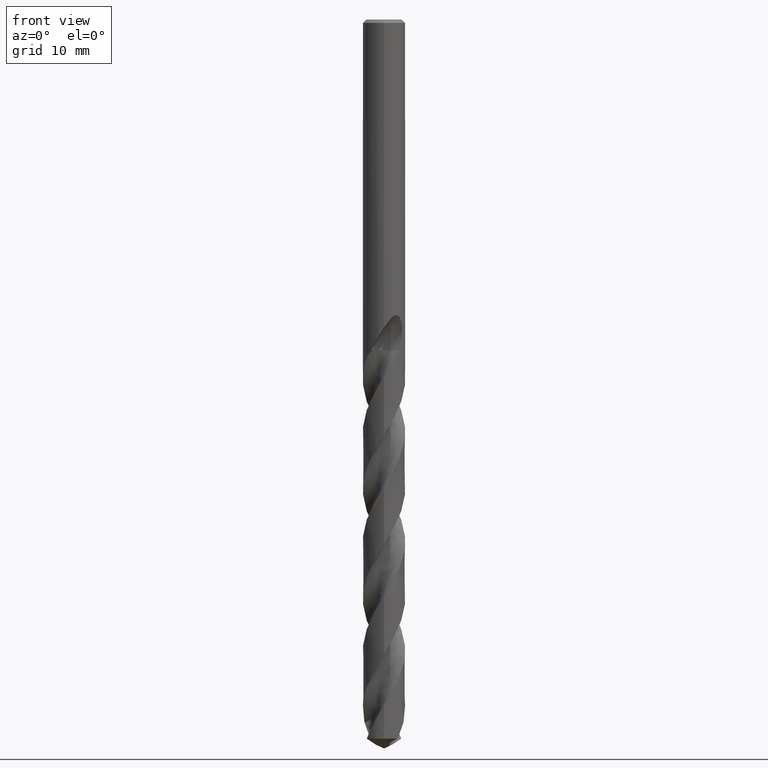
[diagram: clean part render]
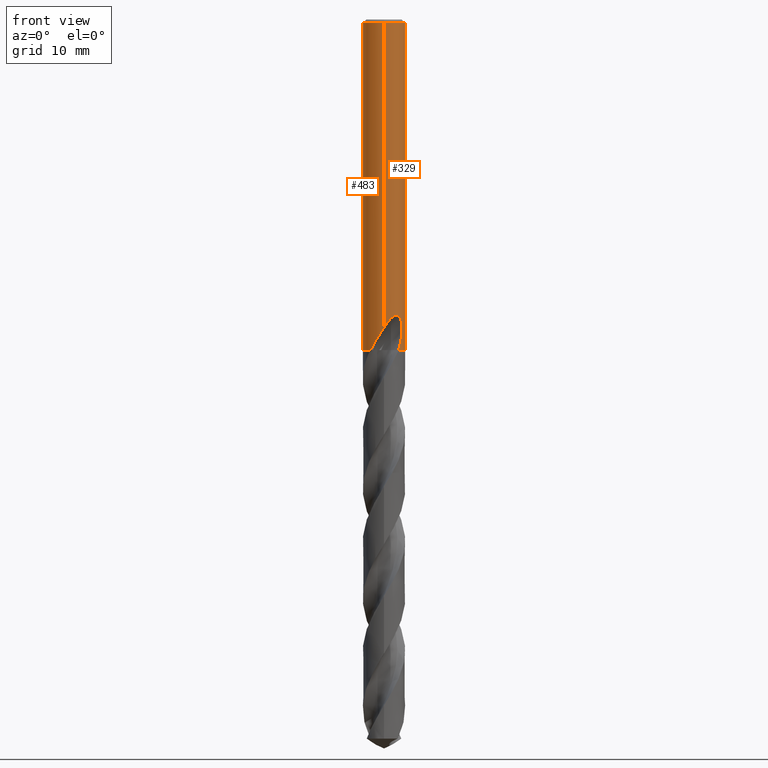
[diagram: same view with one multi-face feature highlighted, each face labeled with its STEP entity id]
A machine part, front view. The highlighted faces form ONE feature: a constant-radius fillet chain: 2 tangent blend faces with common blend radius 2.5 mm. The faces share edges in the B-rep.
Their STEP definitions:
[1] entity #483 (Cylinder):
#297=VERTEX_POINT('',#796);
#345=EDGE_CURVE('',#459,#461,#848,.T.);
#361=EDGE_CURVE('',#689,#657,#865,.T.);
#367=VERTEX_POINT('',#871);
#371=EDGE_CURVE('',#697,#445,#875,.T.);
#403=EDGE_CURVE('',#693,#697,#911,.T.);
#411=VERTEX_POINT('',#921);
#413=EDGE_CURVE('',#601,#739,#923,.T.);
#445=VERTEX_POINT('',#960);
#459=VERTEX_POINT('',#976);
#461=VERTEX_POINT('',#978);
#463=EDGE_CURVE('',#667,#459,#980,.T.);
#475=EDGE_CURVE('',#445,#297,#994,.T.);
#483=ADVANCED_FACE('',(#1003),#1004,.T.);
#509=EDGE_CURVE('',#297,#601,#1031,.T.);
#511=EDGE_CURVE('',#711,#411,#1033,.T.);
#523=EDGE_CURVE('',#367,#711,#1045,.T.);
#567=EDGE_CURVE('',#411,#667,#1091,.T.);
#601=VERTEX_POINT('',#1132);
#647=EDGE_CURVE('',#739,#749,#1181,.T.);
#657=VERTEX_POINT('',#1191);
#667=VERTEX_POINT('',#1202);
#681=EDGE_CURVE('',#461,#693,#1217,.T.);
#683=EDGE_CURVE('',#689,#367,#1219,.T.);
#689=VERTEX_POINT('',#1225);
#693=VERTEX_POINT('',#1229);
#697=VERTEX_POINT('',#1233);
#711=VERTEX_POINT('',#1249);
#717=EDGE_CURVE('',#749,#657,#1255,.T.);
#739=VERTEX_POINT('',#1279);
#749=VERTEX_POINT('',#1292);
#796=CARTESIAN_POINT('',(-1.337052752443,2.11241329696265,-26.3720803908795));
#848=B_SPLINE_CURVE_WITH_KNOTS('',3,(#2874,#2875,#2876,#2877,#2878,#2879,#2880,#2881,#2882,#2883,#2884,#2885,#2886,#2887,#2888,#2889,#2890,#2891,#2892,#2893,#2894,#2895,#2896,#2897,#2898,#2899,#2900),.UNSPECIFIED.,.F.,.F.,(4,2,3,2,2,2,2,2,2,2,2,2,4),(-0.545536025367692,-0.272768012683846,0.0,0.272768012683848,0.545536025367696,0.820534288590035,1.09553255181237,1.36658811994437,1.63764368807636,1.90985781574818,2.18207194342,2.45428607109182,2.72650019876364),.UNSPECIFIED.);
#865=CIRCLE('',#4023,2.5);
#871=CARTESIAN_POINT('',(8.04065567925304E-013,-2.5,-36.3475508021617));
#875=LINE('',#4057,#4058);
#911=B_SPLINE_CURVE_WITH_KNOTS('',3,(#4124,#4125,#4126,#4127,#4128,#4129,#4130,#4131,#4132,#4133,#4134,#4135,#4136,#4137,#4138,#4139,#4140,#4141),.UNSPECIFIED.,.F.,.F.,(4,2,2,2,2,2,2,2,4),(3.40747025134213,3.63399679422936,3.86052333711658,4.08704988000381,4.54010296577826,4.98894677805631,5.21336868419534,5.43779059033436,5.89737811399236),.UNSPECIFIED.);
#921=CARTESIAN_POINT('',(0.0,2.5,-0.399999999999999));
#923=LINE('',#4154,#4155);
#960=CARTESIAN_POINT('',(-4.84778234642394E-016,2.5,-25.7128911336578));
#976=CARTESIAN_POINT('',(-0.486378944383046,2.45223072374131,-24.6432837483006));
#978=CARTESIAN_POINT('',(-0.562333990228013,2.43593523793927,-24.3171221986971));
#980=B_SPLINE_CURVE_WITH_KNOTS('',3,(#4717,#4718,#4719,#4720,#4721,#4722,#4723,#4724,#4725,#4726,#4727,#4728,#4729,#4730,#4731,#4732,#4733,#4734,#4735,#4736,#4737,#4738,#4739,#4740,#4741,#4742,#4743),.UNSPECIFIED.,.F.,.F.,(4,2,3,2,2,2,2,2,2,2,2,2,4),(-0.545536025367692,-0.272768012683846,0.0,0.272768012683848,0.545536025367696,0.820534288590035,1.09553255181237,1.36658811994437,1.63764368807636,1.90985781574818,2.18207194342,2.45428607109182,2.72650019876364),.UNSPECIFIED.);
#994=ELLIPSE('',#5168,2.78732108010715,2.5);
#1003=FACE_OUTER_BOUND('',#5579,.T.);
#1004=CYLINDRICAL_SURFACE('',#5580,2.5);
#1031=B_SPLINE_CURVE_WITH_KNOTS('',3,(#5829,#5830,#5831,#5832,#5833,#5834,#5835,#5836,#5837,#5838,#5839,#5840,#5841,#5842),.UNSPECIFIED.,.F.,.F.,(4,2,2,2,2,2,4),(5.74184131033546,6.38338630713353,6.70167125762085,7.01995620810817,7.33824115859549,7.65652610908281,7.97267049279763),.UNSPECIFIED.);
#1033=CIRCLE('',#5845,2.5);
#1045=LINE('',#5862,#5863);
#1091=LINE('',#6033,#6034);
#1132=CARTESIAN_POINT('',(-4.05848327793801E-016,2.5,-27.0310253601033));
#1181=B_SPLINE_CURVE_WITH_KNOTS('',3,(#6390,#6391,#6392,#6393,#6394,#6395,#6396,#6397,#6398,#6399,#6400,#6401,#6402,#6403,#6404,#6405,#6406,#6407,#6408,#6409,#6410,#6411,#6412,#6413,#6414,#6415,#6416,#6417),.UNSPECIFIED.,.F.,.F.,(4,2,2,2,2,2,2,2,2,2,2,2,2,4),(0.0,1.22122386173699,1.88969268965014,2.49570206115854,3.20005920250859,4.04588076504936,4.77671705363808,5.1087496307142,5.3514701623625,5.58118445651955,5.87263528591434,6.29907753808364,6.90528861786853,7.59419731699709),.UNSPECIFIED.);
#1191=CARTESIAN_POINT('',(-1.73901278444137,1.79606083848779,-39.0));
#1202=CARTESIAN_POINT('',(1.28723065792858E-015,2.5,-25.0232688117743));
#1217=CIRCLE('',#7735,2.5);
#1219=B_SPLINE_CURVE_WITH_KNOTS('',3,(#7738,#7739,#7740,#7741,#7742,#7743,#7744,#7745,#7746,#7747,#7748,#7749,#7750,#7751,#7752,#7753,#7754,#7755,#7756,#7757,#7758,#7759,#7760,#7761,#7762,#7763,#7764,#7765),.UNSPECIFIED.,.F.,.F.,(4,2,2,2,2,2,2,2,2,2,2,2,2,4),(0.0,1.22122386173695,1.88969268965015,2.49570206115883,3.2000592025093,4.04588076505078,4.77671705364005,5.10874963071638,5.35147016236483,5.58118445652202,5.87263528591698,6.29907753808691,6.90528861787344,7.59419731700397),.UNSPECIFIED.);
#1225=CARTESIAN_POINT('',(-1.59066632366362,-1.92867328668244,-39.0));
#1229=CARTESIAN_POINT('',(-1.0350734039088,2.27565881636959,-24.3171221986971));
#1233=CARTESIAN_POINT('',(2.06254272401591E-016,2.5,-25.5000801551881));
#1249=CARTESIAN_POINT('',(3.06151588455594E-016,-2.5,-0.399999999999999));
#1255=B_SPLINE_CURVE_WITH_KNOTS('',3,(#8084,#8085,#8086,#8087),.UNSPECIFIED.,.F.,.F.,(4,4),(0.0,1.43153845134806),.UNSPECIFIED.);
#1279=CARTESIAN_POINT('',(-8.05508857857316E-013,2.5,-36.3475508021617));
#1292=CARTESIAN_POINT('',(-2.03410540828571,1.45341500886114,-37.6360494335651));
#2874=CARTESIAN_POINT('',(0.665970925763578,2.40966444262217,-23.8144468406677));
#2875=CARTESIAN_POINT('',(0.728934701926765,2.39226283119475,-23.8776898552512));
#2876=CARTESIAN_POINT('',(0.783854191141695,2.3742527106411,-23.9578173401929));
#2877=CARTESIAN_POINT('',(0.85710538433736,2.3488026216247,-24.1342986039861));
#2878=CARTESIAN_POINT('',(0.875400981188567,2.34172439072878,-24.2307193416922));
#2879=CARTESIAN_POINT('',(0.875400981188567,2.34172439072878,-24.3216420125868));
#2880=CARTESIAN_POINT('',(0.875400981188567,2.34172439072878,-24.4125646834814));
#2881=CARTESIAN_POINT('',(0.857105384337359,2.3488026216247,-24.5089854211875));
#2882=CARTESIAN_POINT('',(0.783854191141694,2.3742527106411,-24.6854666849806));
#2883=CARTESIAN_POINT('',(0.728934701926765,2.39226283119475,-24.7655941699223));
#2884=CARTESIAN_POINT('',(0.602492334852459,2.42720833595748,-24.8925972969923));
#2885=CARTESIAN_POINT('',(0.522074206021918,2.44653483128876,-24.9480400654794));
#2886=CARTESIAN_POINT('',(0.344864497739391,2.47773336651695,-25.0220194084222));
#2887=CARTESIAN_POINT('',(0.248012633036036,2.4893558213916,-25.0405166027747));
#2888=CARTESIAN_POINT('',(0.0663518021847662,2.50075206612679,-25.0405166027747));
#2889=CARTESIAN_POINT('',(-0.0298893470602784,2.50138879143264,-25.022492023163));
#2890=CARTESIAN_POINT('',(-0.206770062073363,2.49300730059576,-24.9493021497283));
#2891=CARTESIAN_POINT('',(-0.287428111278846,2.4842541825409,-24.8941514092032));
#2892=CARTESIAN_POINT('',(-0.415014574728184,2.46615735069508,-24.7669203186748));
#2893=CARTESIAN_POINT('',(-0.470452609740376,2.45562407455832,-24.6861824514513));
#2894=CARTESIAN_POINT('',(-0.544127554922908,2.44035663307035,-24.5089289603225));
#2895=CARTESIAN_POINT('',(-0.562348199187247,2.43593195776706,-24.4123800551441));
#2896=CARTESIAN_POINT('',(-0.562348199187247,2.43593195776706,-24.2309039700295));
#2897=CARTESIAN_POINT('',(-0.544127554922907,2.44035663307035,-24.1343550648511));
#2898=CARTESIAN_POINT('',(-0.470452609740376,2.45562407455832,-23.9571015737223));
#2899=CARTESIAN_POINT('',(-0.415014574728185,2.46615735069508,-23.8763637064988));
#2900=CARTESIAN_POINT('',(-0.351085299602306,2.47522506297976,-23.8126124967618));
#4023=AXIS2_PLACEMENT_3D('',#8737,#8738,#8739);
#4057=CARTESIAN_POINT('',(-3.06151588455594E-016,2.5,-34.0));
#4058=VECTOR('',#8743,1.0);
#4124=CARTESIAN_POINT('',(-1.01249105024972,2.28579567616273,-24.0960724981866));
#4125=CARTESIAN_POINT('',(-1.02776520969296,2.27903000165907,-24.1730604203531));
#4126=CARTESIAN_POINT('',(-1.03510901790186,2.27564261716515,-24.2507930131037));
#4127=CARTESIAN_POINT('',(-1.03510901790186,2.27564261716515,-24.4018107083619));
#4128=CARTESIAN_POINT('',(-1.02776520969296,2.27903000165907,-24.4795433011124));
#4129=CARTESIAN_POINT('',(-0.997216890806469,2.29256135066638,-24.6335191454456));
#4130=CARTESIAN_POINT('',(-0.974023085473006,2.30268573317761,-24.709766240962));
#4131=CARTESIAN_POINT('',(-0.882620396703176,2.3399382303257,-24.9283916468438));
#4132=CARTESIAN_POINT('',(-0.791438931771837,2.37392732019541,-25.060528896947));
#4133=CARTESIAN_POINT('',(-0.582569540250674,2.43357741163698,-25.2683635025582));
#4134=CARTESIAN_POINT('',(-0.450707212977386,2.46338886979259,-25.3587659383457));
#4135=CARTESIAN_POINT('',(-0.232809556070147,2.49021186651352,-25.4491762805451));
#4136=CARTESIAN_POINT('',(-0.156868678239248,2.4962479730291,-25.4720810709889));
#4137=CARTESIAN_POINT('',(-0.00382397135294391,2.50116914708075,-25.5021808764159));
#4138=CARTESIAN_POINT('',(0.0732815758300291,2.50004518820827,-25.5093686300866));
#4139=CARTESIAN_POINT('',(0.300885062429601,2.48655125524764,-25.5093686300866));
#4140=CARTESIAN_POINT('',(0.461355574497977,2.46164847460973,-25.4780070879051));
#4141=CARTESIAN_POINT('',(0.607066912513942,2.42517417183401,-25.4166530697376));
#4154=CARTESIAN_POINT('',(-3.06151588455594E-016,2.5,-34.0));
#4155=VECTOR('',#8797,1.0);
#4717=CARTESIAN_POINT('',(0.665970925763578,2.40966444262217,-23.8144468406677));
#4718=CARTESIAN_POINT('',(0.728934701926765,2.39226283119475,-23.8776898552512));
#4719=CARTESIAN_POINT('',(0.783854191141695,2.3742527106411,-23.9578173401929));
#4720=CARTESIAN_POINT('',(0.85710538433736,2.3488026216247,-24.1342986039861));
#4721=CARTESIAN_POINT('',(0.875400981188567,2.34172439072878,-24.2307193416922));
#4722=CARTESIAN_POINT('',(0.875400981188567,2.34172439072878,-24.3216420125868));
#4723=CARTESIAN_POINT('',(0.875400981188567,2.34172439072878,-24.4125646834814));
#4724=CARTESIAN_POINT('',(0.857105384337359,2.3488026216247,-24.5089854211875));
#4725=CARTESIAN_POINT('',(0.783854191141694,2.3742527106411,-24.6854666849806));
#4726=CARTESIAN_POINT('',(0.728934701926765,2.39226283119475,-24.7655941699223));
#4727=CARTESIAN_POINT('',(0.602492334852459,2.42720833595748,-24.8925972969923));
#4728=CARTESIAN_POINT('',(0.522074206021918,2.44653483128876,-24.9480400654794));
#4729=CARTESIAN_POINT('',(0.344864497739391,2.47773336651695,-25.0220194084222));
#4730=CARTESIAN_POINT('',(0.248012633036036,2.4893558213916,-25.0405166027747));
#4731=CARTESIAN_POINT('',(0.0663518021847662,2.50075206612679,-25.0405166027747));
#4732=CARTESIAN_POINT('',(-0.0298893470602784,2.50138879143264,-25.022492023163));
#4733=CARTESIAN_POINT('',(-0.206770062073363,2.49300730059576,-24.9493021497283));
#4734=CARTESIAN_POINT('',(-0.287428111278846,2.4842541825409,-24.8941514092032));
#4735=CARTESIAN_POINT('',(-0.415014574728184,2.46615735069508,-24.7669203186748));
#4736=CARTESIAN_POINT('',(-0.470452609740376,2.45562407455832,-24.6861824514513));
#4737=CARTESIAN_POINT('',(-0.544127554922908,2.44035663307035,-24.5089289603225));
#4738=CARTESIAN_POINT('',(-0.562348199187247,2.43593195776706,-24.4123800551441));
#4739=CARTESIAN_POINT('',(-0.562348199187247,2.43593195776706,-24.2309039700295));
#4740=CARTESIAN_POINT('',(-0.544127554922907,2.44035663307035,-24.1343550648511));
#4741=CARTESIAN_POINT('',(-0.470452609740376,2.45562407455832,-23.9571015737223));
#4742=CARTESIAN_POINT('',(-0.415014574728185,2.46615735069508,-23.8763637064988));
#4743=CARTESIAN_POINT('',(-0.351085299602306,2.47522506297976,-23.8126124967618));
#5168=AXIS2_PLACEMENT_3D('',#8912,#8913,#8914);
#5579=EDGE_LOOP('',(#8929,#8930,#8931,#8932,#8933,#8934,#8935,#8936,#8937,#8938,#8939,#8940,#8941,#8942,#8943));
#5580=AXIS2_PLACEMENT_3D('',#8944,#8945,#8946);
#5829=CARTESIAN_POINT('',(-1.52922720239943,1.97774218831515,-26.0350256137533));
#5830=CARTESIAN_POINT('',(-1.44554661440645,2.04244541510641,-26.2336185092837));
#5831=CARTESIAN_POINT('',(-1.32224059386466,2.12776411068116,-26.4117773237405));
#5832=CARTESIAN_POINT('',(-1.11083923266715,2.24106269636897,-26.6235239182011));
#5833=CARTESIAN_POINT('',(-1.03137274700072,2.2792842117821,-26.6900993969564));
#5834=CARTESIAN_POINT('',(-0.85699847174598,2.35040844974621,-26.8086756195647));
#5835=CARTESIAN_POINT('',(-0.76207969937467,2.38327172699608,-26.8606838688763));
#5836=CARTESIAN_POINT('',(-0.562123380301406,2.4381892760378,-26.9451467146832));
#5837=CARTESIAN_POINT('',(-0.456876992863795,2.46026890642638,-26.9776691337745));
#5838=CARTESIAN_POINT('',(-0.243043404773846,2.49049986589281,-27.0207410230115));
#5839=CARTESIAN_POINT('',(-0.134450325090297,2.49863547873756,-27.0312723335086));
#5840=CARTESIAN_POINT('',(0.0770125100596432,2.50103465103285,-27.0312723335086));
#5841=CARTESIAN_POINT('',(0.185068225214801,2.49544746802312,-27.0208794424668));
#5842=CARTESIAN_POINT('',(0.29161272585759,2.48293415501054,-26.9995311633397));
#5845=AXIS2_PLACEMENT_3D('',#8972,#8973,#8974);
#5862=CARTESIAN_POINT('',(3.06151588455594E-016,-2.5,-34.0));
#5863=VECTOR('',#8975,1.0);
#6033=CARTESIAN_POINT('',(-3.06151588455594E-016,2.5,-34.0));
#6034=VECTOR('',#9000,1.0);
#6390=CARTESIAN_POINT('',(1.59066632366362,1.92867328668244,-39.0));
#6391=CARTESIAN_POINT('',(1.42594142425635,2.06452955221238,-38.6534187983299));
#6392=CARTESIAN_POINT('',(1.23674190160998,2.18519538232714,-38.3301111158466));
#6393=CARTESIAN_POINT('',(0.906835962169124,2.33324037322966,-37.789785502064));
#6394=CARTESIAN_POINT('',(0.787940024509335,2.3758899926876,-37.5993667946439));
#6395=CARTESIAN_POINT('',(0.557692202951656,2.43964850259996,-37.2306305138082));
#6396=CARTESIAN_POINT('',(0.447357130362196,2.46217434500238,-37.0540138983952));
#6397=CARTESIAN_POINT('',(0.208473913673857,2.49466063687215,-36.6732869532758));
#6398=CARTESIAN_POINT('',(0.0779172999257475,2.50225636404324,-36.4661784962012));
#6399=CARTESIAN_POINT('',(-0.211976083899422,2.49601617967841,-36.0232393234365));
#6400=CARTESIAN_POINT('',(-0.383880944493438,2.47706499324399,-35.7712035112239));
#6401=CARTESIAN_POINT('',(-0.714928582304699,2.40076561909535,-35.3564114709981));
#6402=CARTESIAN_POINT('',(-0.897693353063925,2.342829684032,-35.1544796989304));
#6403=CARTESIAN_POINT('',(-1.17453590045742,2.2090026317397,-34.9650842820656));
#6404=CARTESIAN_POINT('',(-1.26632834786995,2.15839541451626,-34.9182048509992));
#6405=CARTESIAN_POINT('',(-1.42717848859667,2.05419379491698,-34.8822115619022));
#6406=CARTESIAN_POINT('',(-1.49315616646306,2.00673693164053,-34.8815573377637));
#6407=CARTESIAN_POINT('',(-1.61604642135828,1.90898496294982,-34.9131321603238));
#6408=CARTESIAN_POINT('',(-1.6697938044949,1.86177144882854,-34.942722943795));
#6409=CARTESIAN_POINT('',(-1.77917434136715,1.75830270000715,-35.0352969942584));
#6410=CARTESIAN_POINT('',(-1.82977924249417,1.70468131194901,-35.1036447714215));
#6411=CARTESIAN_POINT('',(-1.93343472012183,1.58759530338203,-35.2907988400505));
#6412=CARTESIAN_POINT('',(-1.98297746496641,1.52383542864205,-35.42961315846));
#6413=CARTESIAN_POINT('',(-2.07612653691827,1.39582794841838,-35.8179782127033));
#6414=CARTESIAN_POINT('',(-2.1097923569152,1.34131856627263,-36.0945599999825));
#6415=CARTESIAN_POINT('',(-2.13125891654718,1.30698103574412,-36.755584349787));
#6416=CARTESIAN_POINT('',(-2.11597100893976,1.33884122227733,-37.170420667861));
#6417=CARTESIAN_POINT('',(-2.03410540828571,1.45341500886114,-37.6360494335651));
#7735=AXIS2_PLACEMENT_3D('',#9151,#9152,#9153);
#7738=CARTESIAN_POINT('',(-1.59066632366362,-1.92867328668244,-39.0));
#7739=CARTESIAN_POINT('',(-1.42594142425636,-2.06452955221237,-38.65341879833));
#7740=CARTESIAN_POINT('',(-1.23674190161,-2.18519538232714,-38.3301111158467));
#7741=CARTESIAN_POINT('',(-0.906835962169103,-2.33324037322968,-37.789785502064));
#7742=CARTESIAN_POINT('',(-0.787940024509289,-2.37588999268762,-37.5993667946438));
#7743=CARTESIAN_POINT('',(-0.557692202951657,-2.43964850259996,-37.2306305138082));
#7744=CARTESIAN_POINT('',(-0.447357130362197,-2.46217434500238,-37.0540138983952));
#7745=CARTESIAN_POINT('',(-0.20847391367384,-2.49466063687215,-36.6732869532758));
#7746=CARTESIAN_POINT('',(-0.0779172999257398,-2.50225636404324,-36.4661784962011));
#7747=CARTESIAN_POINT('',(0.211976083899448,-2.49601617967841,-36.0232393234365));
#7748=CARTESIAN_POINT('',(0.383880944493447,-2.47706499324398,-35.7712035112239));
#7749=CARTESIAN_POINT('',(0.714928582304678,-2.40076561909535,-35.3564114709982));
#7750=CARTESIAN_POINT('',(0.89769335306392,-2.342829684032,-35.1544796989304));
#7751=CARTESIAN_POINT('',(1.17453590045742,-2.20900263173971,-34.9650842820656));
#7752=CARTESIAN_POINT('',(1.26632834786995,-2.15839541451626,-34.9182048509992));
#7753=CARTESIAN_POINT('',(1.42717848859667,-2.05419379491699,-34.8822115619022));
#7754=CARTESIAN_POINT('',(1.49315616646306,-2.00673693164053,-34.8815573377637));
#7755=CARTESIAN_POINT('',(1.61604642135828,-1.90898496294982,-34.9131321603238));
#7756=CARTESIAN_POINT('',(1.6697938044949,-1.86177144882854,-34.942722943795));
#7757=CARTESIAN_POINT('',(1.77917434136715,-1.75830270000715,-35.0352969942584));
#7758=CARTESIAN_POINT('',(1.82977924249417,-1.70468131194902,-35.1036447714215));
#7759=CARTESIAN_POINT('',(1.93343472012188,-1.58759530338196,-35.2907988400506));
#7760=CARTESIAN_POINT('',(1.98297746496645,-1.523835428642,-35.4296131584601));
#7761=CARTESIAN_POINT('',(2.07612653691829,-1.39582794841835,-35.8179782127034));
#7762=CARTESIAN_POINT('',(2.1097923569152,-1.34131856627262,-36.0945599999826));
#7763=CARTESIAN_POINT('',(2.13125891654718,-1.30698103574413,-36.755584349787));
#7764=CARTESIAN_POINT('',(2.11597100893976,-1.33884122227732,-37.170420667861));
#7765=CARTESIAN_POINT('',(2.03410540828571,-1.45341500886114,-37.6360494335651));
#8084=CARTESIAN_POINT('',(-2.03410540833833,1.4534150087875,-37.636049433594));
#8085=CARTESIAN_POINT('',(-1.95380260387414,1.56580160716287,-38.0927998816988));
#8086=CARTESIAN_POINT('',(-1.85708060435714,1.68174319185533,-38.5522344219346));
#8087=CARTESIAN_POINT('',(-1.73901278444137,1.79606083848779,-39.0));
#8737=CARTESIAN_POINT('',(0.0,0.0,-39.0));
#8738=DIRECTION('',(0.0,0.0,-1.0));
#8739=DIRECTION('',(0.0,1.0,0.0));
#8743=DIRECTION('',(0.0,0.0,-1.0));
#8797=DIRECTION('',(0.0,0.0,-1.0));
#8912=CARTESIAN_POINT('',(0.0,0.0,-25.7128911336578));
#8913=DIRECTION('',(-0.442195774284071,0.0,0.896918556617774));
#8914=DIRECTION('',(0.896918556617774,-0.0,0.442195774284071));
#8929=ORIENTED_EDGE('',*,*,#567,.T.);
#8930=ORIENTED_EDGE('',*,*,#463,.T.);
#8931=ORIENTED_EDGE('',*,*,#345,.T.);
#8932=ORIENTED_EDGE('',*,*,#681,.T.);
#8933=ORIENTED_EDGE('',*,*,#403,.T.);
#8934=ORIENTED_EDGE('',*,*,#371,.T.);
#8935=ORIENTED_EDGE('',*,*,#475,.T.);
#8936=ORIENTED_EDGE('',*,*,#509,.T.);
#8937=ORIENTED_EDGE('',*,*,#413,.T.);
#8938=ORIENTED_EDGE('',*,*,#647,.T.);
#8939=ORIENTED_EDGE('',*,*,#717,.T.);
#8940=ORIENTED_EDGE('',*,*,#361,.F.);
#8941=ORIENTED_EDGE('',*,*,#683,.T.);
#8942=ORIENTED_EDGE('',*,*,#523,.T.);
#8943=ORIENTED_EDGE('',*,*,#511,.T.);
#8944=CARTESIAN_POINT('',(0.0,0.0,-34.0));
#8945=DIRECTION('',(-0.0,-0.0,1.0));
#8946=DIRECTION('',(0.0,1.0,0.0));
#8972=CARTESIAN_POINT('',(0.0,0.0,-0.399999999999999));
#8973=DIRECTION('',(0.0,0.0,-1.0));
#8974=DIRECTION('',(0.0,1.0,0.0));
#8975=DIRECTION('',(-0.0,-0.0,1.0));
#9000=DIRECTION('',(0.0,0.0,-1.0));
#9151=CARTESIAN_POINT('',(0.0,0.0,-24.3171221986971));
#9152=DIRECTION('',(0.0,-0.0,1.0));
#9153=DIRECTION('',(0.0,1.0,0.0));
[2] entity #329 (Cylinder):
#295=EDGE_CURVE('',#521,#667,#794,.T.);
#303=EDGE_CURVE('',#353,#407,#802,.T.);
#307=EDGE_CURVE('',#531,#521,#806,.T.);
#311=EDGE_CURVE('',#411,#711,#810,.T.);
#319=EDGE_CURVE('',#367,#737,#819,.T.);
#329=ADVANCED_FACE('',(#830),#831,.T.);
#353=VERTEX_POINT('',#856);
#367=VERTEX_POINT('',#871);
#407=VERTEX_POINT('',#916);
#411=VERTEX_POINT('',#921);
#413=EDGE_CURVE('',#601,#739,#923,.T.);
#419=VERTEX_POINT('',#931);
#437=EDGE_CURVE('',#499,#541,#950,.T.);
#451=EDGE_CURVE('',#737,#407,#967,.T.);
#499=VERTEX_POINT('',#1021);
#503=EDGE_CURVE('',#353,#739,#1025,.T.);
#521=VERTEX_POINT('',#1043);
#523=EDGE_CURVE('',#367,#711,#1045,.T.);
#531=VERTEX_POINT('',#1053);
#541=VERTEX_POINT('',#1063);
#567=EDGE_CURVE('',#411,#667,#1091,.T.);
#597=EDGE_CURVE('',#419,#643,#1128,.T.);
#601=VERTEX_POINT('',#1132);
#643=VERTEX_POINT('',#1177);
#653=EDGE_CURVE('',#643,#499,#1187,.T.);
#667=VERTEX_POINT('',#1202);
#711=VERTEX_POINT('',#1249);
#721=EDGE_CURVE('',#541,#531,#1260,.T.);
#723=EDGE_CURVE('',#601,#419,#1262,.T.);
#737=VERTEX_POINT('',#1277);
#739=VERTEX_POINT('',#1279);
#794=B_SPLINE_CURVE_WITH_KNOTS('',3,(#2257,#2258,#2259,#2260,#2261,#2262,#2263,#2264,#2265,#2266,#2267,#2268,#2269,#2270,#2271,#2272,#2273,#2274,#2275,#2276,#2277,#2278,#2279,#2280,#2281,#2282,#2283),.UNSPECIFIED.,.F.,.F.,(4,2,3,2,2,2,2,2,2,2,2,2,4),(-0.545536025367692,-0.272768012683846,0.0,0.272768012683848,0.545536025367696,0.820534288590035,1.09553255181237,1.36658811994437,1.63764368807636,1.90985781574818,2.18207194342,2.45428607109182,2.72650019876364),.UNSPECIFIED.);
#802=CIRCLE('',#2446,2.5);
#806=B_SPLINE_CURVE_WITH_KNOTS('',3,(#2467,#2468,#2469,#2470,#2471,#2472,#2473,#2474),.UNSPECIFIED.,.F.,.F.,(4,2,2,4),(0.639744448550144,1.27948889710029,1.59563325488604,1.9117776126718),.UNSPECIFIED.);
#810=CIRCLE('',#2481,2.5);
#819=B_SPLINE_CURVE_WITH_KNOTS('',3,(#2493,#2494,#2495,#2496,#2497,#2498,#2499,#2500,#2501,#2502,#2503,#2504,#2505,#2506,#2507,#2508,#2509,#2510,#2511,#2512,#2513,#2514,#2515,#2516,#2517,#2518,#2519,#2520),.UNSPECIFIED.,.F.,.F.,(4,2,2,2,2,2,2,2,2,2,2,2,2,4),(0.0,1.22122386173695,1.88969268965015,2.49570206115883,3.2000592025093,4.04588076505078,4.77671705364005,5.10874963071638,5.35147016236483,5.58118445652202,5.87263528591698,6.29907753808691,6.90528861787344,7.59419731700397),.UNSPECIFIED.);
#830=FACE_OUTER_BOUND('',#2548,.T.);
#831=CYLINDRICAL_SURFACE('',#2549,2.5);
#856=CARTESIAN_POINT('',(1.59066632366362,1.92867328668244,-39.0));
#871=CARTESIAN_POINT('',(8.04065567925304E-013,-2.5,-36.3475508021617));
#916=CARTESIAN_POINT('',(1.73901278444137,-1.79606083848779,-39.0));
#921=CARTESIAN_POINT('',(0.0,2.5,-0.399999999999999));
#923=LINE('',#4154,#4155);
#931=CARTESIAN_POINT('',(0.29010312703583,2.4831109873874,-26.9998328990228));
#950=B_SPLINE_CURVE_WITH_KNOTS('',3,(#4673,#4674,#4675,#4676,#4677,#4678,#4679,#4680),.UNSPECIFIED.,.F.,.F.,(4,2,2,4),(8.28880385962675,8.60494820735153,8.92109255507632,9.56083698033935),.UNSPECIFIED.);
#967=B_SPLINE_CURVE_WITH_KNOTS('',3,(#4700,#4701,#4702,#4703),.UNSPECIFIED.,.F.,.F.,(4,4),(0.0,1.43153845134801),.UNSPECIFIED.);
#1021=CARTESIAN_POINT('',(0.873560781758956,2.34241148404218,-26.7587351791531));
#1025=B_SPLINE_CURVE_WITH_KNOTS('',3,(#5789,#5790,#5791,#5792,#5793,#5794,#5795,#5796,#5797,#5798,#5799,#5800,#5801,#5802,#5803,#5804,#5805,#5806,#5807,#5808,#5809,#5810,#5811,#5812,#5813,#5814,#5815,#5816),.UNSPECIFIED.,.F.,.F.,(4,2,2,2,2,2,2,2,2,2,2,2,2,4),(0.0,1.22122386173699,1.88969268965014,2.49570206115854,3.20005920250859,4.04588076504936,4.77671705363808,5.1087496307142,5.3514701623625,5.58118445651955,5.87263528591434,6.29907753808364,6.90528861786853,7.59419731699709),.UNSPECIFIED.);
#1043=CARTESIAN_POINT('',(0.799431726384364,2.36873572076965,-24.000000276873));
#1045=LINE('',#5862,#5863);
#1053=CARTESIAN_POINT('',(1.33721006514658,2.11231371762593,-24.5150484364821));
#1063=CARTESIAN_POINT('',(1.33721006514658,2.11231371762593,-26.2901657003257));
#1091=LINE('',#6033,#6034);
#1128=ELLIPSE('',#6093,7.61998643342443,2.5);
#1132=CARTESIAN_POINT('',(-4.05848327793801E-016,2.5,-27.0310253601033));
#1177=CARTESIAN_POINT('',(0.873560781758957,2.34241148404218,-25.3198931596091));
#1187=LINE('',#6427,#6428);
#1202=CARTESIAN_POINT('',(1.28723065792858E-015,2.5,-25.0232688117743));
#1249=CARTESIAN_POINT('',(3.06151588455594E-016,-2.5,-0.399999999999999));
#1260=LINE('',#8093,#8094);
#1262=B_SPLINE_CURVE_WITH_KNOTS('',3,(#8097,#8098,#8099,#8100,#8101,#8102,#8103,#8104,#8105,#8106,#8107,#8108,#8109,#8110),.UNSPECIFIED.,.F.,.F.,(4,2,2,2,2,2,4),(5.74184131033546,6.38338630713353,6.70167125762085,7.01995620810817,7.33824115859549,7.65652610908281,7.97267049279763),.UNSPECIFIED.);
#1277=CARTESIAN_POINT('',(2.03410540828571,-1.45341500886114,-37.6360494335651));
#1279=CARTESIAN_POINT('',(-8.05508857857316E-013,2.5,-36.3475508021617));
#2257=CARTESIAN_POINT('',(0.665970925763578,2.40966444262217,-23.8144468406677));
#2258=CARTESIAN_POINT('',(0.728934701926765,2.39226283119475,-23.8776898552512));
#2259=CARTESIAN_POINT('',(0.783854191141695,2.3742527106411,-23.9578173401929));
#2260=CARTESIAN_POINT('',(0.85710538433736,2.3488026216247,-24.1342986039861));
#2261=CARTESIAN_POINT('',(0.875400981188567,2.34172439072878,-24.2307193416922));
#2262=CARTESIAN_POINT('',(0.875400981188567,2.34172439072878,-24.3216420125868));
#2263=CARTESIAN_POINT('',(0.875400981188567,2.34172439072878,-24.4125646834814));
#2264=CARTESIAN_POINT('',(0.857105384337359,2.3488026216247,-24.5089854211875));
#2265=CARTESIAN_POINT('',(0.783854191141694,2.3742527106411,-24.6854666849806));
#2266=CARTESIAN_POINT('',(0.728934701926765,2.39226283119475,-24.7655941699223));
#2267=CARTESIAN_POINT('',(0.602492334852459,2.42720833595748,-24.8925972969923));
#2268=CARTESIAN_POINT('',(0.522074206021918,2.44653483128876,-24.9480400654794));
#2269=CARTESIAN_POINT('',(0.344864497739391,2.47773336651695,-25.0220194084222));
#2270=CARTESIAN_POINT('',(0.248012633036036,2.4893558213916,-25.0405166027747));
#2271=CARTESIAN_POINT('',(0.0663518021847662,2.50075206612679,-25.0405166027747));
#2272=CARTESIAN_POINT('',(-0.0298893470602784,2.50138879143264,-25.022492023163));
#2273=CARTESIAN_POINT('',(-0.206770062073363,2.49300730059576,-24.9493021497283));
#2274=CARTESIAN_POINT('',(-0.287428111278846,2.4842541825409,-24.8941514092032));
#2275=CARTESIAN_POINT('',(-0.415014574728184,2.46615735069508,-24.7669203186748));
#2276=CARTESIAN_POINT('',(-0.470452609740376,2.45562407455832,-24.6861824514513));
#2277=CARTESIAN_POINT('',(-0.544127554922908,2.44035663307035,-24.5089289603225));
#2278=CARTESIAN_POINT('',(-0.562348199187247,2.43593195776706,-24.4123800551441));
#2279=CARTESIAN_POINT('',(-0.562348199187247,2.43593195776706,-24.2309039700295));
#2280=CARTESIAN_POINT('',(-0.544127554922907,2.44035663307035,-24.1343550648511));
#2281=CARTESIAN_POINT('',(-0.470452609740376,2.45562407455832,-23.9571015737223));
#2282=CARTESIAN_POINT('',(-0.415014574728185,2.46615735069508,-23.8763637064988));
#2283=CARTESIAN_POINT('',(-0.351085299602306,2.47522506297976,-23.8126124967618));
#2446=AXIS2_PLACEMENT_3D('',#8650,#8651,#8652);
#2467=CARTESIAN_POINT('',(1.47242043074394,2.02039057489581,-24.7699941015186));
#2468=CARTESIAN_POINT('',(1.38849076890436,2.08155667539702,-24.5708823161051));
#2469=CARTESIAN_POINT('',(1.26456538001892,2.16245116963082,-24.3920341872377));
#2470=CARTESIAN_POINT('',(1.05211367095107,2.26919375594684,-24.1799136674318));
#2471=CARTESIAN_POINT('',(0.972490531914319,2.30498859904378,-24.113437579076));
#2472=CARTESIAN_POINT('',(0.797925633062242,2.37108096874386,-23.9951580440248));
#2473=CARTESIAN_POINT('',(0.702973512196474,2.40133766294762,-23.9433470763621));
#2474=CARTESIAN_POINT('',(0.60308445293518,2.42616758337669,-23.9013329793759));
#2481=AXIS2_PLACEMENT_3D('',#8654,#8655,#8656);
#2493=CARTESIAN_POINT('',(-1.59066632366362,-1.92867328668244,-39.0));
#2494=CARTESIAN_POINT('',(-1.42594142425636,-2.06452955221237,-38.65341879833));
#2495=CARTESIAN_POINT('',(-1.23674190161,-2.18519538232714,-38.3301111158467));
#2496=CARTESIAN_POINT('',(-0.906835962169103,-2.33324037322968,-37.789785502064));
#2497=CARTESIAN_POINT('',(-0.787940024509289,-2.37588999268762,-37.5993667946438));
#2498=CARTESIAN_POINT('',(-0.557692202951657,-2.43964850259996,-37.2306305138082));
#2499=CARTESIAN_POINT('',(-0.447357130362197,-2.46217434500238,-37.0540138983952));
#2500=CARTESIAN_POINT('',(-0.20847391367384,-2.49466063687215,-36.6732869532758));
#2501=CARTESIAN_POINT('',(-0.0779172999257398,-2.50225636404324,-36.4661784962011));
#2502=CARTESIAN_POINT('',(0.211976083899448,-2.49601617967841,-36.0232393234365));
#2503=CARTESIAN_POINT('',(0.383880944493447,-2.47706499324398,-35.7712035112239));
#2504=CARTESIAN_POINT('',(0.714928582304678,-2.40076561909535,-35.3564114709982));
#2505=CARTESIAN_POINT('',(0.89769335306392,-2.342829684032,-35.1544796989304));
#2506=CARTESIAN_POINT('',(1.17453590045742,-2.20900263173971,-34.9650842820656));
#2507=CARTESIAN_POINT('',(1.26632834786995,-2.15839541451626,-34.9182048509992));
#2508=CARTESIAN_POINT('',(1.42717848859667,-2.05419379491699,-34.8822115619022));
#2509=CARTESIAN_POINT('',(1.49315616646306,-2.00673693164053,-34.8815573377637));
#2510=CARTESIAN_POINT('',(1.61604642135828,-1.90898496294982,-34.9131321603238));
#2511=CARTESIAN_POINT('',(1.6697938044949,-1.86177144882854,-34.942722943795));
#2512=CARTESIAN_POINT('',(1.77917434136715,-1.75830270000715,-35.0352969942584));
#2513=CARTESIAN_POINT('',(1.82977924249417,-1.70468131194902,-35.1036447714215));
#2514=CARTESIAN_POINT('',(1.93343472012188,-1.58759530338196,-35.2907988400506));
#2515=CARTESIAN_POINT('',(1.98297746496645,-1.523835428642,-35.4296131584601));
#2516=CARTESIAN_POINT('',(2.07612653691829,-1.39582794841835,-35.8179782127034));
#2517=CARTESIAN_POINT('',(2.1097923569152,-1.34131856627262,-36.0945599999826));
#2518=CARTESIAN_POINT('',(2.13125891654718,-1.30698103574413,-36.755584349787));
#2519=CARTESIAN_POINT('',(2.11597100893976,-1.33884122227732,-37.170420667861));
#2520=CARTESIAN_POINT('',(2.03410540828571,-1.45341500886114,-37.6360494335651));
#2548=EDGE_LOOP('',(#8677,#8678,#8679,#8680,#8681,#8682,#8683,#8684,#8685,#8686,#8687,#8688,#8689,#8690,#8691));
#2549=AXIS2_PLACEMENT_3D('',#8692,#8693,#8694);
#4154=CARTESIAN_POINT('',(-3.06151588455594E-016,2.5,-34.0));
#4155=VECTOR('',#8797,1.0);
#4673=CARTESIAN_POINT('',(0.603084475818766,2.4261675776884,-26.9038811410726));
#4674=CARTESIAN_POINT('',(0.702973531740107,2.40133765708919,-26.861867045411));
#4675=CARTESIAN_POINT('',(0.79792564940747,2.37108096312752,-26.8100560793959));
#4676=CARTESIAN_POINT('',(0.972490542378663,2.3049885945097,-26.6917765480973));
#4677=CARTESIAN_POINT('',(1.05211367873228,2.26919375225092,-26.6253004618463));
#4678=CARTESIAN_POINT('',(1.26456538001743,2.1624511691993,-26.4131799493004));
#4679=CARTESIAN_POINT('',(1.38849076436452,2.08155667822049,-26.2343318267404));
#4680=CARTESIAN_POINT('',(1.47242042311746,2.02039058045384,-26.035220048339));
#4700=CARTESIAN_POINT('',(2.03410540833833,-1.4534150087875,-37.636049433594));
#4701=CARTESIAN_POINT('',(1.95380260387414,-1.56580160716287,-38.0927998816988));
#4702=CARTESIAN_POINT('',(1.85708060435714,-1.68174319185533,-38.5522344219346));
#4703=CARTESIAN_POINT('',(1.73901278444137,-1.7960608384878,-39.0));
#5789=CARTESIAN_POINT('',(1.59066632366362,1.92867328668244,-39.0));
#5790=CARTESIAN_POINT('',(1.42594142425635,2.06452955221238,-38.6534187983299));
#5791=CARTESIAN_POINT('',(1.23674190160998,2.18519538232714,-38.3301111158466));
#5792=CARTESIAN_POINT('',(0.906835962169124,2.33324037322966,-37.789785502064));
#5793=CARTESIAN_POINT('',(0.787940024509335,2.3758899926876,-37.5993667946439));
#5794=CARTESIAN_POINT('',(0.557692202951656,2.43964850259996,-37.2306305138082));
#5795=CARTESIAN_POINT('',(0.447357130362196,2.46217434500238,-37.0540138983952));
#5796=CARTESIAN_POINT('',(0.208473913673857,2.49466063687215,-36.6732869532758));
#5797=CARTESIAN_POINT('',(0.0779172999257475,2.50225636404324,-36.4661784962012));
#5798=CARTESIAN_POINT('',(-0.211976083899422,2.49601617967841,-36.0232393234365));
#5799=CARTESIAN_POINT('',(-0.383880944493438,2.47706499324399,-35.7712035112239));
#5800=CARTESIAN_POINT('',(-0.714928582304699,2.40076561909535,-35.3564114709981));
#5801=CARTESIAN_POINT('',(-0.897693353063925,2.342829684032,-35.1544796989304));
#5802=CARTESIAN_POINT('',(-1.17453590045742,2.2090026317397,-34.9650842820656));
#5803=CARTESIAN_POINT('',(-1.26632834786995,2.15839541451626,-34.9182048509992));
#5804=CARTESIAN_POINT('',(-1.42717848859667,2.05419379491698,-34.8822115619022));
#5805=CARTESIAN_POINT('',(-1.49315616646306,2.00673693164053,-34.8815573377637));
#5806=CARTESIAN_POINT('',(-1.61604642135828,1.90898496294982,-34.9131321603238));
#5807=CARTESIAN_POINT('',(-1.6697938044949,1.86177144882854,-34.942722943795));
#5808=CARTESIAN_POINT('',(-1.77917434136715,1.75830270000715,-35.0352969942584));
#5809=CARTESIAN_POINT('',(-1.82977924249417,1.70468131194901,-35.1036447714215));
#5810=CARTESIAN_POINT('',(-1.93343472012183,1.58759530338203,-35.2907988400505));
#5811=CARTESIAN_POINT('',(-1.98297746496641,1.52383542864205,-35.42961315846));
#5812=CARTESIAN_POINT('',(-2.07612653691827,1.39582794841838,-35.8179782127033));
#5813=CARTESIAN_POINT('',(-2.1097923569152,1.34131856627263,-36.0945599999825));
#5814=CARTESIAN_POINT('',(-2.13125891654718,1.30698103574412,-36.755584349787));
#5815=CARTESIAN_POINT('',(-2.11597100893976,1.33884122227733,-37.170420667861));
#5816=CARTESIAN_POINT('',(-2.03410540828571,1.45341500886114,-37.6360494335651));
#5862=CARTESIAN_POINT('',(3.06151588455594E-016,-2.5,-34.0));
#5863=VECTOR('',#8975,1.0);
#6033=CARTESIAN_POINT('',(-3.06151588455594E-016,2.5,-34.0));
#6034=VECTOR('',#9000,1.0);
#6093=AXIS2_PLACEMENT_3D('',#9068,#9069,#9070);
#6427=CARTESIAN_POINT('',(0.873560781758957,2.34241148404218,-26.0393141693811));
#6428=VECTOR('',#9125,1.0);
#8093=CARTESIAN_POINT('',(1.33721006514658,2.11231371762593,-25.4026070684039));
#8094=VECTOR('',#9184,1.0);
#8097=CARTESIAN_POINT('',(-1.52922720239943,1.97774218831515,-26.0350256137533));
#8098=CARTESIAN_POINT('',(-1.44554661440645,2.04244541510641,-26.2336185092837));
#8099=CARTESIAN_POINT('',(-1.32224059386466,2.12776411068116,-26.4117773237405));
#8100=CARTESIAN_POINT('',(-1.11083923266715,2.24106269636897,-26.6235239182011));
#8101=CARTESIAN_POINT('',(-1.03137274700072,2.2792842117821,-26.6900993969564));
#8102=CARTESIAN_POINT('',(-0.85699847174598,2.35040844974621,-26.8086756195647));
#8103=CARTESIAN_POINT('',(-0.76207969937467,2.38327172699608,-26.8606838688763));
#8104=CARTESIAN_POINT('',(-0.562123380301406,2.4381892760378,-26.9451467146832));
#8105=CARTESIAN_POINT('',(-0.456876992863795,2.46026890642638,-26.9776691337745));
#8106=CARTESIAN_POINT('',(-0.243043404773846,2.49049986589281,-27.0207410230115));
#8107=CARTESIAN_POINT('',(-0.134450325090297,2.49863547873756,-27.0312723335086));
#8108=CARTESIAN_POINT('',(0.0770125100596432,2.50103465103285,-27.0312723335086));
#8109=CARTESIAN_POINT('',(0.185068225214801,2.49544746802312,-27.0208794424668));
#8110=CARTESIAN_POINT('',(0.29161272585759,2.48293415501054,-26.9995311633397));
#8650=CARTESIAN_POINT('',(0.0,0.0,-39.0));
#8651=DIRECTION('',(0.0,0.0,-1.0));
#8652=DIRECTION('',(0.0,1.0,0.0));
#8654=CARTESIAN_POINT('',(0.0,0.0,-0.399999999999999));
#8655=DIRECTION('',(0.0,0.0,-1.0));
#8656=DIRECTION('',(0.0,1.0,0.0));
#8677=ORIENTED_EDGE('',*,*,#567,.F.);
#8678=ORIENTED_EDGE('',*,*,#311,.T.);
#8679=ORIENTED_EDGE('',*,*,#523,.F.);
#8680=ORIENTED_EDGE('',*,*,#319,.T.);
#8681=ORIENTED_EDGE('',*,*,#451,.T.);
#8682=ORIENTED_EDGE('',*,*,#303,.F.);
#8683=ORIENTED_EDGE('',*,*,#503,.T.);
#8684=ORIENTED_EDGE('',*,*,#413,.F.);
#8685=ORIENTED_EDGE('',*,*,#723,.T.);
#8686=ORIENTED_EDGE('',*,*,#597,.T.);
#8687=ORIENTED_EDGE('',*,*,#653,.T.);
#8688=ORIENTED_EDGE('',*,*,#437,.T.);
#8689=ORIENTED_EDGE('',*,*,#721,.T.);
#8690=ORIENTED_EDGE('',*,*,#307,.T.);
#8691=ORIENTED_EDGE('',*,*,#295,.T.);
#8692=CARTESIAN_POINT('',(0.0,0.0,-34.0));
#8693=DIRECTION('',(-0.0,-0.0,1.0));
#8694=DIRECTION('',(0.0,1.0,0.0));
#8797=DIRECTION('',(0.0,0.0,-1.0));
#8975=DIRECTION('',(-0.0,-0.0,1.0));
#9000=DIRECTION('',(0.0,0.0,-1.0));
#9068=CARTESIAN_POINT('',(0.0,0.0,-27.8351219173269));
#9069=DIRECTION('',(0.944648353914092,0.0,-0.328084573619969));
#9070=DIRECTION('',(0.328084573619969,-0.0,0.944648353914092));
#9125=DIRECTION('',(0.0,0.0,-1.0));
#9184=DIRECTION('',(-0.0,-0.0,1.0));